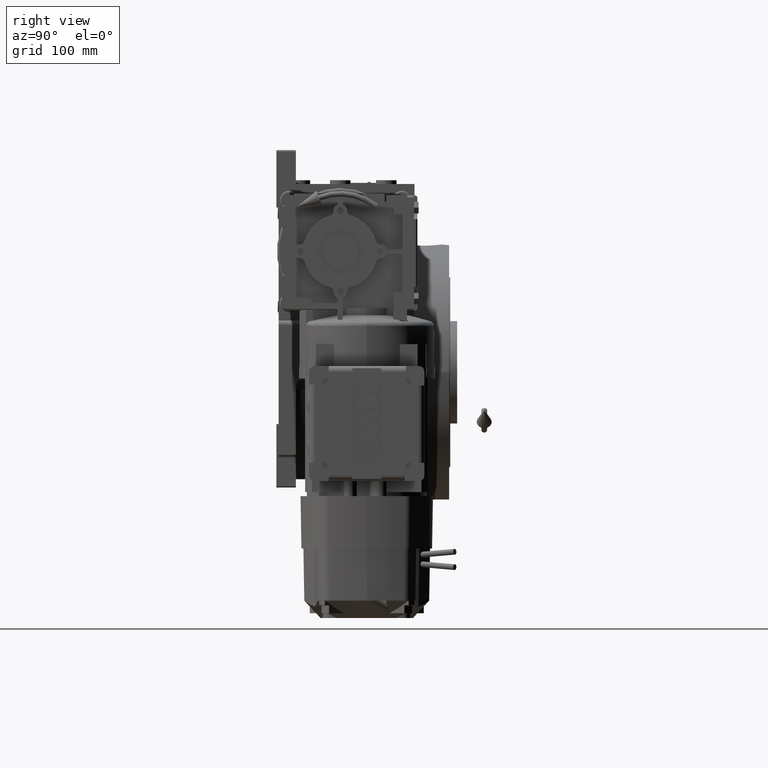
[diagram: clean part render]
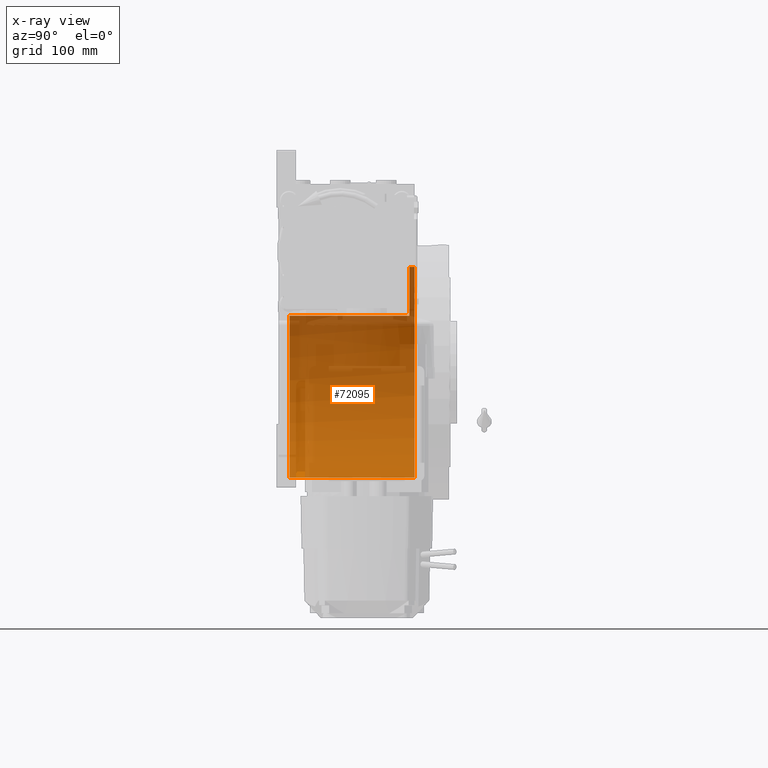
[diagram: x-ray — body ghosted, one internal face saturated and labeled with its STEP entity id]
A machine part, right view, then the same camera in x-ray: the body is ghosted and one INTERNAL B-rep face — a face not visible from any outside direction — is saturated and labeled: STEP entity #72095.
In plain terms, the highlighted cylindrical surface (partial cylindrical patch) has radius 91.5 mm, axis along (0, -1, 0).
Its self-contained STEP definition (entity closure, byte-faithful):
#1577 = CARTESIAN_POINT ( 'NONE',  ( 1.120551821219827868E-14, 69.00000000000004263, 91.50000000000000000 ) ) ;
#2127 = AXIS2_PLACEMENT_3D ( 'NONE', #45600, #99257, #29405 ) ;
#3520 = CARTESIAN_POINT ( 'NONE',  ( 1.120551821219827868E-14, 60.00000000000000000, 91.50000000000000000 ) ) ;
#4397 = DIRECTION ( 'NONE',  ( -0.000000000000000000, 1.000000000000000000, -0.000000000000000000 ) ) ;
#4756 = CIRCLE ( 'NONE', #24079, 91.50000000000000000 ) ;
#5017 = EDGE_CURVE ( 'NONE', #68970, #44970, #16270, .T. ) ;
#6065 = DIRECTION ( 'NONE',  ( 0.000000000000000000, 0.000000000000000000, 1.000000000000000000 ) ) ;
#6375 = ORIENTED_EDGE ( 'NONE', *, *, #31404, .F. ) ;
#8753 = VERTEX_POINT ( 'NONE', #60027 ) ;
#8923 = VERTEX_POINT ( 'NONE', #54432 ) ;
#8944 = AXIS2_PLACEMENT_3D ( 'NONE', #80100, #41623, #57319 ) ;
#8971 = VERTEX_POINT ( 'NONE', #38723 ) ;
#15885 = CARTESIAN_POINT ( 'NONE',  ( 1.120551821219827868E-14, 64.50000000000000000, 91.50000000000000000 ) ) ;
#16270 = LINE ( 'NONE', #1577, #69129 ) ;
#24079 = AXIS2_PLACEMENT_3D ( 'NONE', #52617, #44541, #6065 ) ;
#24857 = VECTOR ( 'NONE', #4397, 1000.000000000000000 ) ;
#27966 = CYLINDRICAL_SURFACE ( 'NONE', #51082, 91.50000000000000000 ) ;
#29405 = DIRECTION ( 'NONE',  ( 1.776356839400250465E-15, 0.000000000000000000, -1.000000000000000000 ) ) ;
#29903 = CIRCLE ( 'NONE', #8944, 91.50000000000000000 ) ;
#31404 = EDGE_CURVE ( 'NONE', #68970, #8923, #29903, .T. ) ;
#32424 = DIRECTION ( 'NONE',  ( 0.000000000000000000, -1.000000000000000000, 0.000000000000000000 ) ) ;
#38723 = CARTESIAN_POINT ( 'NONE',  ( -77.27386362800814368, 60.00000000000000000, 48.99999999999998579 ) ) ;
#39293 = ORIENTED_EDGE ( 'NONE', *, *, #66313, .F. ) ;
#39706 = DIRECTION ( 'NONE',  ( 0.000000000000000000, -1.000000000000000000, 0.000000000000000000 ) ) ;
#41515 = VERTEX_POINT ( 'NONE', #80951 ) ;
#41623 = DIRECTION ( 'NONE',  ( -0.000000000000000000, -1.000000000000000000, -0.000000000000000000 ) ) ;
#44160 = CARTESIAN_POINT ( 'NONE',  ( 0.000000000000000000, 69.00000000000004263, 0.000000000000000000 ) ) ;
#44339 = LINE ( 'NONE', #75209, #24857 ) ;
#44541 = DIRECTION ( 'NONE',  ( 0.000000000000000000, 1.000000000000000000, 0.000000000000000000 ) ) ;
#44709 = ORIENTED_EDGE ( 'NONE', *, *, #77050, .F. ) ;
#44970 = VERTEX_POINT ( 'NONE', #3520 ) ;
#45600 = CARTESIAN_POINT ( 'NONE',  ( 0.000000000000000000, 60.00000000000000000, 0.000000000000000000 ) ) ;
#49008 = CIRCLE ( 'NONE', #2127, 91.50000000000000000 ) ;
#51082 = AXIS2_PLACEMENT_3D ( 'NONE', #44160, #97352, #82134 ) ;
#52617 = CARTESIAN_POINT ( 'NONE',  ( 0.000000000000000000, -44.00000000000000000, 0.000000000000000000 ) ) ;
#53942 = EDGE_LOOP ( 'NONE', ( #6375, #61406, #91954, #66032, #44709, #39293 ) ) ;
#54432 = CARTESIAN_POINT ( 'NONE',  ( 0.000000000000000000, 64.50000000000000000, -91.50000000000000000 ) ) ;
#57319 = DIRECTION ( 'NONE',  ( 0.000000000000000000, 0.000000000000000000, 1.000000000000000000 ) ) ;
#60027 = CARTESIAN_POINT ( 'NONE',  ( -77.27386362800814368, -44.00000000000000000, 49.00000000000000000 ) ) ;
#60212 = VECTOR ( 'NONE', #39706, 1000.000000000000000 ) ;
#61406 = ORIENTED_EDGE ( 'NONE', *, *, #5017, .T. ) ;
#66032 = ORIENTED_EDGE ( 'NONE', *, *, #67913, .F. ) ;
#66313 = EDGE_CURVE ( 'NONE', #8923, #41515, #79185, .T. ) ;
#67913 = EDGE_CURVE ( 'NONE', #8753, #8971, #44339, .T. ) ;
#68970 = VERTEX_POINT ( 'NONE', #15885 ) ;
#69129 = VECTOR ( 'NONE', #32424, 1000.000000000000000 ) ;
#70073 = CARTESIAN_POINT ( 'NONE',  ( 0.000000000000000000, 69.00000000000004263, -91.50000000000000000 ) ) ;
#72095 = ADVANCED_FACE ( 'NONE', ( #73561 ), #27966, .F. ) ;
#73561 = FACE_OUTER_BOUND ( 'NONE', #53942, .T. ) ;
#75209 = CARTESIAN_POINT ( 'NONE',  ( -77.27386362800812947, 69.00000000000004263, 48.99999999999998579 ) ) ;
#77050 = EDGE_CURVE ( 'NONE', #41515, #8753, #4756, .T. ) ;
#79185 = LINE ( 'NONE', #70073, #60212 ) ;
#80100 = CARTESIAN_POINT ( 'NONE',  ( 0.000000000000000000, 64.50000000000000000, 0.000000000000000000 ) ) ;
#80951 = CARTESIAN_POINT ( 'NONE',  ( 0.000000000000000000, -44.00000000000000000, -91.50000000000000000 ) ) ;
#82134 = DIRECTION ( 'NONE',  ( 0.000000000000000000, 0.000000000000000000, -1.000000000000000000 ) ) ;
#91954 = ORIENTED_EDGE ( 'NONE', *, *, #96519, .F. ) ;
#96519 = EDGE_CURVE ( 'NONE', #8971, #44970, #49008, .T. ) ;
#97352 = DIRECTION ( 'NONE',  ( 0.000000000000000000, -1.000000000000000000, 0.000000000000000000 ) ) ;
#99257 = DIRECTION ( 'NONE',  ( 0.000000000000000000, 1.000000000000000000, 0.000000000000000000 ) ) ;